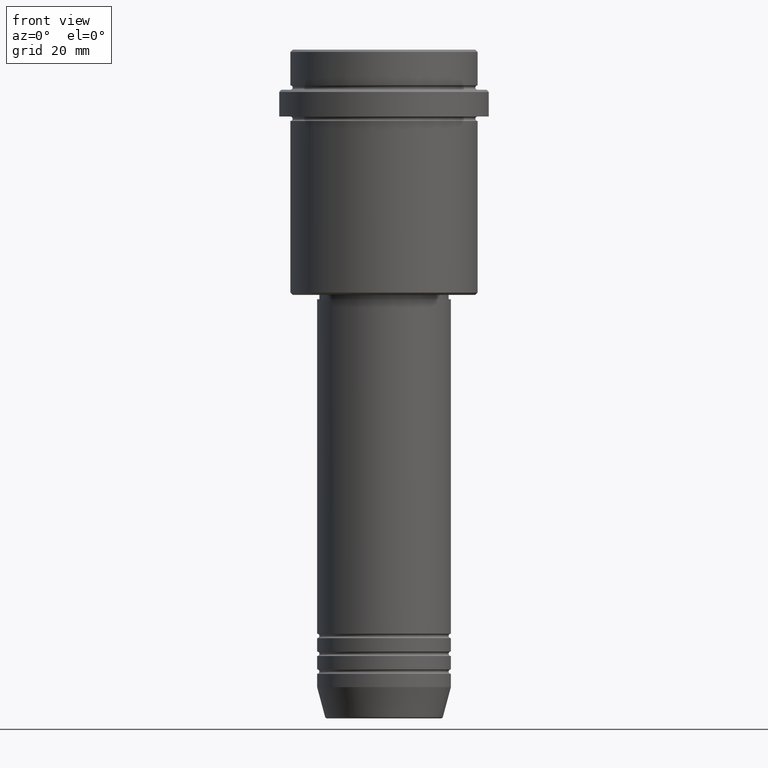
[diagram: clean part render]
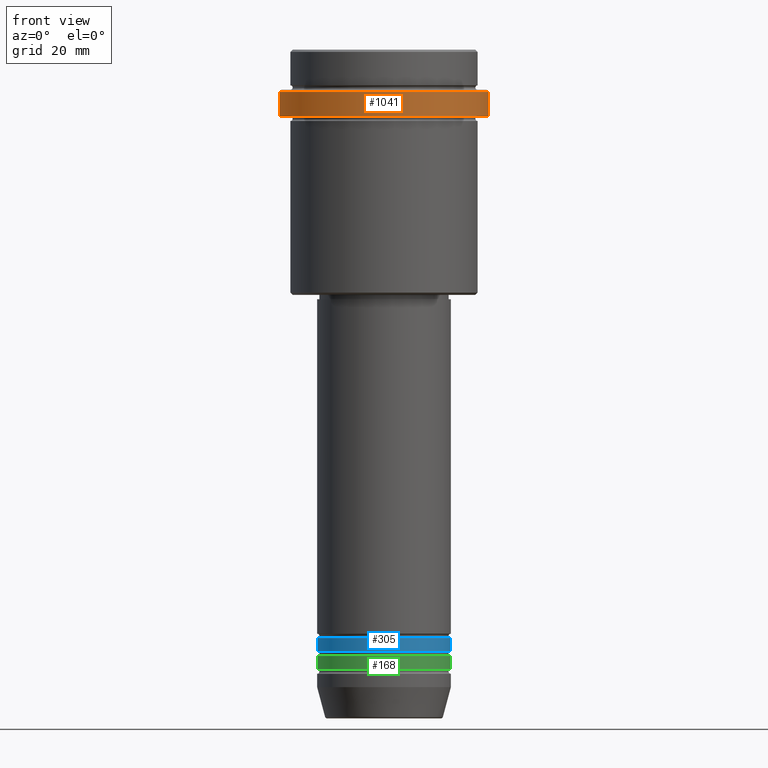
[diagram: same view with three faces highlighted in distinct colors, each labeled with its STEP entity id]
A machine part, front view with three faces highlighted in distinct colors.
Their STEP definitions:

[orange] entity #1041 — the highlighted cylindrical surface (partial cylindrical patch) has radius 23.5 mm, axis along (-0, -0, 1).
#69 = CARTESIAN_POINT ( 'NONE',  ( -23.50000000000000000, 2.877919977996280320E-15, 0.000000000000000000 ) ) ;
#80 = CARTESIAN_POINT ( 'NONE',  ( 23.50000000000000355, 0.000000000000000000, -14.99999999999998757 ) ) ;
#83 = DIRECTION ( 'NONE',  ( -0.000000000000000000, -0.000000000000000000, 1.000000000000000000 ) ) ;
#111 = DIRECTION ( 'NONE',  ( 0.000000000000000000, 0.000000000000000000, -1.000000000000000000 ) ) ;
#174 = CYLINDRICAL_SURFACE ( 'NONE', #1130, 23.50000000000000000 ) ;
#189 = VERTEX_POINT ( 'NONE', #659 ) ;
#190 = FACE_OUTER_BOUND ( 'NONE', #925, .T. ) ;
#193 = DIRECTION ( 'NONE',  ( 1.000000000000000000, 0.000000000000000000, 0.000000000000000000 ) ) ;
#216 = CARTESIAN_POINT ( 'NONE',  ( -23.50000000000000000, 2.877919977996280320E-15, -9.500000000000015987 ) ) ;
#349 = ORIENTED_EDGE ( 'NONE', *, *, #968, .T. ) ;
#395 = CARTESIAN_POINT ( 'NONE',  ( 0.000000000000000000, 0.000000000000000000, 0.000000000000000000 ) ) ;
#405 = VERTEX_POINT ( 'NONE', #1032 ) ;
#424 = CARTESIAN_POINT ( 'NONE',  ( 0.000000000000000000, 0.000000000000000000, -14.99999999999998757 ) ) ;
#490 = DIRECTION ( 'NONE',  ( -0.000000000000000000, -0.000000000000000000, 1.000000000000000000 ) ) ;
#536 = EDGE_CURVE ( 'NONE', #405, #584, #918, .T. ) ;
#584 = VERTEX_POINT ( 'NONE', #216 ) ;
#659 = CARTESIAN_POINT ( 'NONE',  ( -23.50000000000000711, 2.877919977996281109E-15, -14.99999999999998757 ) ) ;
#660 = CIRCLE ( 'NONE', #778, 23.50000000000000355 ) ;
#665 = CARTESIAN_POINT ( 'NONE',  ( 23.50000000000000000, 0.000000000000000000, 0.000000000000000000 ) ) ;
#731 = AXIS2_PLACEMENT_3D ( 'NONE', #1207, #111, #954 ) ;
#775 = VECTOR ( 'NONE', #490, 1000.000000000000000 ) ;
#778 = AXIS2_PLACEMENT_3D ( 'NONE', #424, #83, #193 ) ;
#918 = CIRCLE ( 'NONE', #731, 23.50000000000000000 ) ;
#925 = EDGE_LOOP ( 'NONE', ( #1353, #1375, #349, #1076 ) ) ;
#937 = DIRECTION ( 'NONE',  ( -0.000000000000000000, -0.000000000000000000, 1.000000000000000000 ) ) ;
#954 = DIRECTION ( 'NONE',  ( 1.000000000000000000, 0.000000000000000000, 0.000000000000000000 ) ) ;
#968 = EDGE_CURVE ( 'NONE', #1075, #405, #1136, .T. ) ;
#1024 = DIRECTION ( 'NONE',  ( -0.000000000000000000, -0.000000000000000000, 1.000000000000000000 ) ) ;
#1032 = CARTESIAN_POINT ( 'NONE',  ( 23.50000000000000000, 0.000000000000000000, -9.500000000000015987 ) ) ;
#1041 = ADVANCED_FACE ( 'NONE', ( #190 ), #174, .T. ) ;
#1068 = DIRECTION ( 'NONE',  ( 1.000000000000000000, 0.000000000000000000, 0.000000000000000000 ) ) ;
#1075 = VERTEX_POINT ( 'NONE', #80 ) ;
#1076 = ORIENTED_EDGE ( 'NONE', *, *, #536, .T. ) ;
#1118 = EDGE_CURVE ( 'NONE', #189, #584, #1158, .T. ) ;
#1130 = AXIS2_PLACEMENT_3D ( 'NONE', #395, #937, #1068 ) ;
#1136 = LINE ( 'NONE', #665, #1200 ) ;
#1158 = LINE ( 'NONE', #69, #775 ) ;
#1200 = VECTOR ( 'NONE', #1024, 1000.000000000000000 ) ;
#1207 = CARTESIAN_POINT ( 'NONE',  ( 0.000000000000000000, 0.000000000000000000, -9.500000000000015987 ) ) ;
#1353 = ORIENTED_EDGE ( 'NONE', *, *, #1118, .F. ) ;
#1375 = ORIENTED_EDGE ( 'NONE', *, *, #1416, .T. ) ;
#1416 = EDGE_CURVE ( 'NONE', #189, #1075, #660, .T. ) ;

[blue] entity #305 — the highlighted cylindrical surface (partial cylindrical patch) has radius 15 mm, axis along (-0, -0, 1).
#66 = EDGE_CURVE ( 'NONE', #1116, #332, #231, .T. ) ;
#127 = VERTEX_POINT ( 'NONE', #425 ) ;
#231 = CIRCLE ( 'NONE', #433, 15.00000000000000000 ) ;
#273 = CARTESIAN_POINT ( 'NONE',  ( -15.00000000000000000, 1.836970198721029589E-15, -131.9999999999998579 ) ) ;
#305 = ADVANCED_FACE ( 'NONE', ( #347 ), #792, .T. ) ;
#306 = LINE ( 'NONE', #982, #1087 ) ;
#332 = VERTEX_POINT ( 'NONE', #610 ) ;
#347 = FACE_OUTER_BOUND ( 'NONE', #1195, .T. ) ;
#393 = DIRECTION ( 'NONE',  ( 1.000000000000000000, 0.000000000000000000, 0.000000000000000000 ) ) ;
#425 = CARTESIAN_POINT ( 'NONE',  ( -15.00000000000000000, 1.836970198721029589E-15, -134.9999999999998579 ) ) ;
#433 = AXIS2_PLACEMENT_3D ( 'NONE', #1094, #864, #629 ) ;
#564 = ORIENTED_EDGE ( 'NONE', *, *, #66, .F. ) ;
#600 = EDGE_CURVE ( 'NONE', #127, #1116, #870, .T. ) ;
#610 = CARTESIAN_POINT ( 'NONE',  ( 15.00000000000000000, 0.000000000000000000, -131.9999999999998579 ) ) ;
#612 = ORIENTED_EDGE ( 'NONE', *, *, #1323, .T. ) ;
#629 = DIRECTION ( 'NONE',  ( 1.000000000000000000, 0.000000000000000000, 0.000000000000000000 ) ) ;
#727 = EDGE_CURVE ( 'NONE', #887, #332, #306, .T. ) ;
#743 = DIRECTION ( 'NONE',  ( -0.000000000000000000, -0.000000000000000000, 1.000000000000000000 ) ) ;
#755 = AXIS2_PLACEMENT_3D ( 'NONE', #811, #1167, #393 ) ;
#759 = ORIENTED_EDGE ( 'NONE', *, *, #600, .F. ) ;
#786 = DIRECTION ( 'NONE',  ( 1.000000000000000000, 0.000000000000000000, 0.000000000000000000 ) ) ;
#792 = CYLINDRICAL_SURFACE ( 'NONE', #1309, 15.00000000000000000 ) ;
#804 = VECTOR ( 'NONE', #1098, 1000.000000000000000 ) ;
#811 = CARTESIAN_POINT ( 'NONE',  ( 0.000000000000000000, 0.000000000000000000, -134.9999999999998579 ) ) ;
#864 = DIRECTION ( 'NONE',  ( -0.000000000000000000, -0.000000000000000000, 1.000000000000000000 ) ) ;
#870 = LINE ( 'NONE', #1314, #804 ) ;
#887 = VERTEX_POINT ( 'NONE', #1343 ) ;
#982 = CARTESIAN_POINT ( 'NONE',  ( 15.00000000000000000, 0.000000000000000000, 0.000000000000000000 ) ) ;
#1026 = CARTESIAN_POINT ( 'NONE',  ( 0.000000000000000000, 0.000000000000000000, 0.000000000000000000 ) ) ;
#1087 = VECTOR ( 'NONE', #743, 1000.000000000000000 ) ;
#1094 = CARTESIAN_POINT ( 'NONE',  ( 0.000000000000000000, 0.000000000000000000, -131.9999999999998579 ) ) ;
#1098 = DIRECTION ( 'NONE',  ( -0.000000000000000000, -0.000000000000000000, 1.000000000000000000 ) ) ;
#1116 = VERTEX_POINT ( 'NONE', #273 ) ;
#1167 = DIRECTION ( 'NONE',  ( -0.000000000000000000, -0.000000000000000000, 1.000000000000000000 ) ) ;
#1195 = EDGE_LOOP ( 'NONE', ( #759, #612, #1356, #564 ) ) ;
#1219 = CIRCLE ( 'NONE', #755, 15.00000000000000000 ) ;
#1237 = DIRECTION ( 'NONE',  ( -0.000000000000000000, -0.000000000000000000, 1.000000000000000000 ) ) ;
#1309 = AXIS2_PLACEMENT_3D ( 'NONE', #1026, #1237, #786 ) ;
#1314 = CARTESIAN_POINT ( 'NONE',  ( -15.00000000000000000, 1.836970198721029589E-15, 0.000000000000000000 ) ) ;
#1323 = EDGE_CURVE ( 'NONE', #127, #887, #1219, .T. ) ;
#1343 = CARTESIAN_POINT ( 'NONE',  ( 15.00000000000000000, 0.000000000000000000, -134.9999999999998579 ) ) ;
#1356 = ORIENTED_EDGE ( 'NONE', *, *, #727, .T. ) ;

[green] entity #168 — the highlighted cylindrical surface (partial cylindrical patch) has radius 15 mm, axis along (-0, -0, 1).
#30 = AXIS2_PLACEMENT_3D ( 'NONE', #217, #1090, #1414 ) ;
#43 = VERTEX_POINT ( 'NONE', #818 ) ;
#162 = CARTESIAN_POINT ( 'NONE',  ( 15.00000000000000000, 0.000000000000000000, -138.9999999999998579 ) ) ;
#167 = VERTEX_POINT ( 'NONE', #1302 ) ;
#168 = ADVANCED_FACE ( 'NONE', ( #762 ), #441, .T. ) ;
#179 = CARTESIAN_POINT ( 'NONE',  ( 0.000000000000000000, 0.000000000000000000, -138.9999999999998579 ) ) ;
#195 = VERTEX_POINT ( 'NONE', #162 ) ;
#217 = CARTESIAN_POINT ( 'NONE',  ( 0.000000000000000000, 0.000000000000000000, 0.000000000000000000 ) ) ;
#246 = EDGE_LOOP ( 'NONE', ( #928, #902, #1168, #541 ) ) ;
#247 = EDGE_CURVE ( 'NONE', #43, #167, #894, .T. ) ;
#441 = CYLINDRICAL_SURFACE ( 'NONE', #30, 15.00000000000000000 ) ;
#472 = DIRECTION ( 'NONE',  ( -0.000000000000000000, -0.000000000000000000, 1.000000000000000000 ) ) ;
#541 = ORIENTED_EDGE ( 'NONE', *, *, #813, .F. ) ;
#621 = DIRECTION ( 'NONE',  ( 1.000000000000000000, 0.000000000000000000, 0.000000000000000000 ) ) ;
#646 = DIRECTION ( 'NONE',  ( 1.000000000000000000, 0.000000000000000000, 0.000000000000000000 ) ) ;
#671 = CARTESIAN_POINT ( 'NONE',  ( 15.00000000000000000, 0.000000000000000000, -135.9999999999998579 ) ) ;
#684 = VECTOR ( 'NONE', #472, 1000.000000000000000 ) ;
#757 = AXIS2_PLACEMENT_3D ( 'NONE', #1092, #1325, #646 ) ;
#762 = FACE_OUTER_BOUND ( 'NONE', #246, .T. ) ;
#802 = VECTOR ( 'NONE', #1351, 1000.000000000000000 ) ;
#813 = EDGE_CURVE ( 'NONE', #167, #1238, #1338, .T. ) ;
#818 = CARTESIAN_POINT ( 'NONE',  ( -15.00000000000000000, 1.836970198721029589E-15, -138.9999999999998579 ) ) ;
#868 = CIRCLE ( 'NONE', #935, 15.00000000000000000 ) ;
#894 = LINE ( 'NONE', #1021, #802 ) ;
#902 = ORIENTED_EDGE ( 'NONE', *, *, #1101, .T. ) ;
#928 = ORIENTED_EDGE ( 'NONE', *, *, #247, .F. ) ;
#935 = AXIS2_PLACEMENT_3D ( 'NONE', #179, #1052, #621 ) ;
#1021 = CARTESIAN_POINT ( 'NONE',  ( -15.00000000000000000, 1.836970198721029589E-15, 0.000000000000000000 ) ) ;
#1050 = CARTESIAN_POINT ( 'NONE',  ( 15.00000000000000000, 0.000000000000000000, 0.000000000000000000 ) ) ;
#1052 = DIRECTION ( 'NONE',  ( -0.000000000000000000, -0.000000000000000000, 1.000000000000000000 ) ) ;
#1090 = DIRECTION ( 'NONE',  ( -0.000000000000000000, -0.000000000000000000, 1.000000000000000000 ) ) ;
#1092 = CARTESIAN_POINT ( 'NONE',  ( 0.000000000000000000, 0.000000000000000000, -135.9999999999998579 ) ) ;
#1101 = EDGE_CURVE ( 'NONE', #43, #195, #868, .T. ) ;
#1168 = ORIENTED_EDGE ( 'NONE', *, *, #1318, .T. ) ;
#1171 = LINE ( 'NONE', #1050, #684 ) ;
#1238 = VERTEX_POINT ( 'NONE', #671 ) ;
#1302 = CARTESIAN_POINT ( 'NONE',  ( -15.00000000000000000, 1.836970198721029589E-15, -135.9999999999998579 ) ) ;
#1318 = EDGE_CURVE ( 'NONE', #195, #1238, #1171, .T. ) ;
#1325 = DIRECTION ( 'NONE',  ( -0.000000000000000000, -0.000000000000000000, 1.000000000000000000 ) ) ;
#1338 = CIRCLE ( 'NONE', #757, 15.00000000000000000 ) ;
#1351 = DIRECTION ( 'NONE',  ( -0.000000000000000000, -0.000000000000000000, 1.000000000000000000 ) ) ;
#1414 = DIRECTION ( 'NONE',  ( 1.000000000000000000, 0.000000000000000000, 0.000000000000000000 ) ) ;